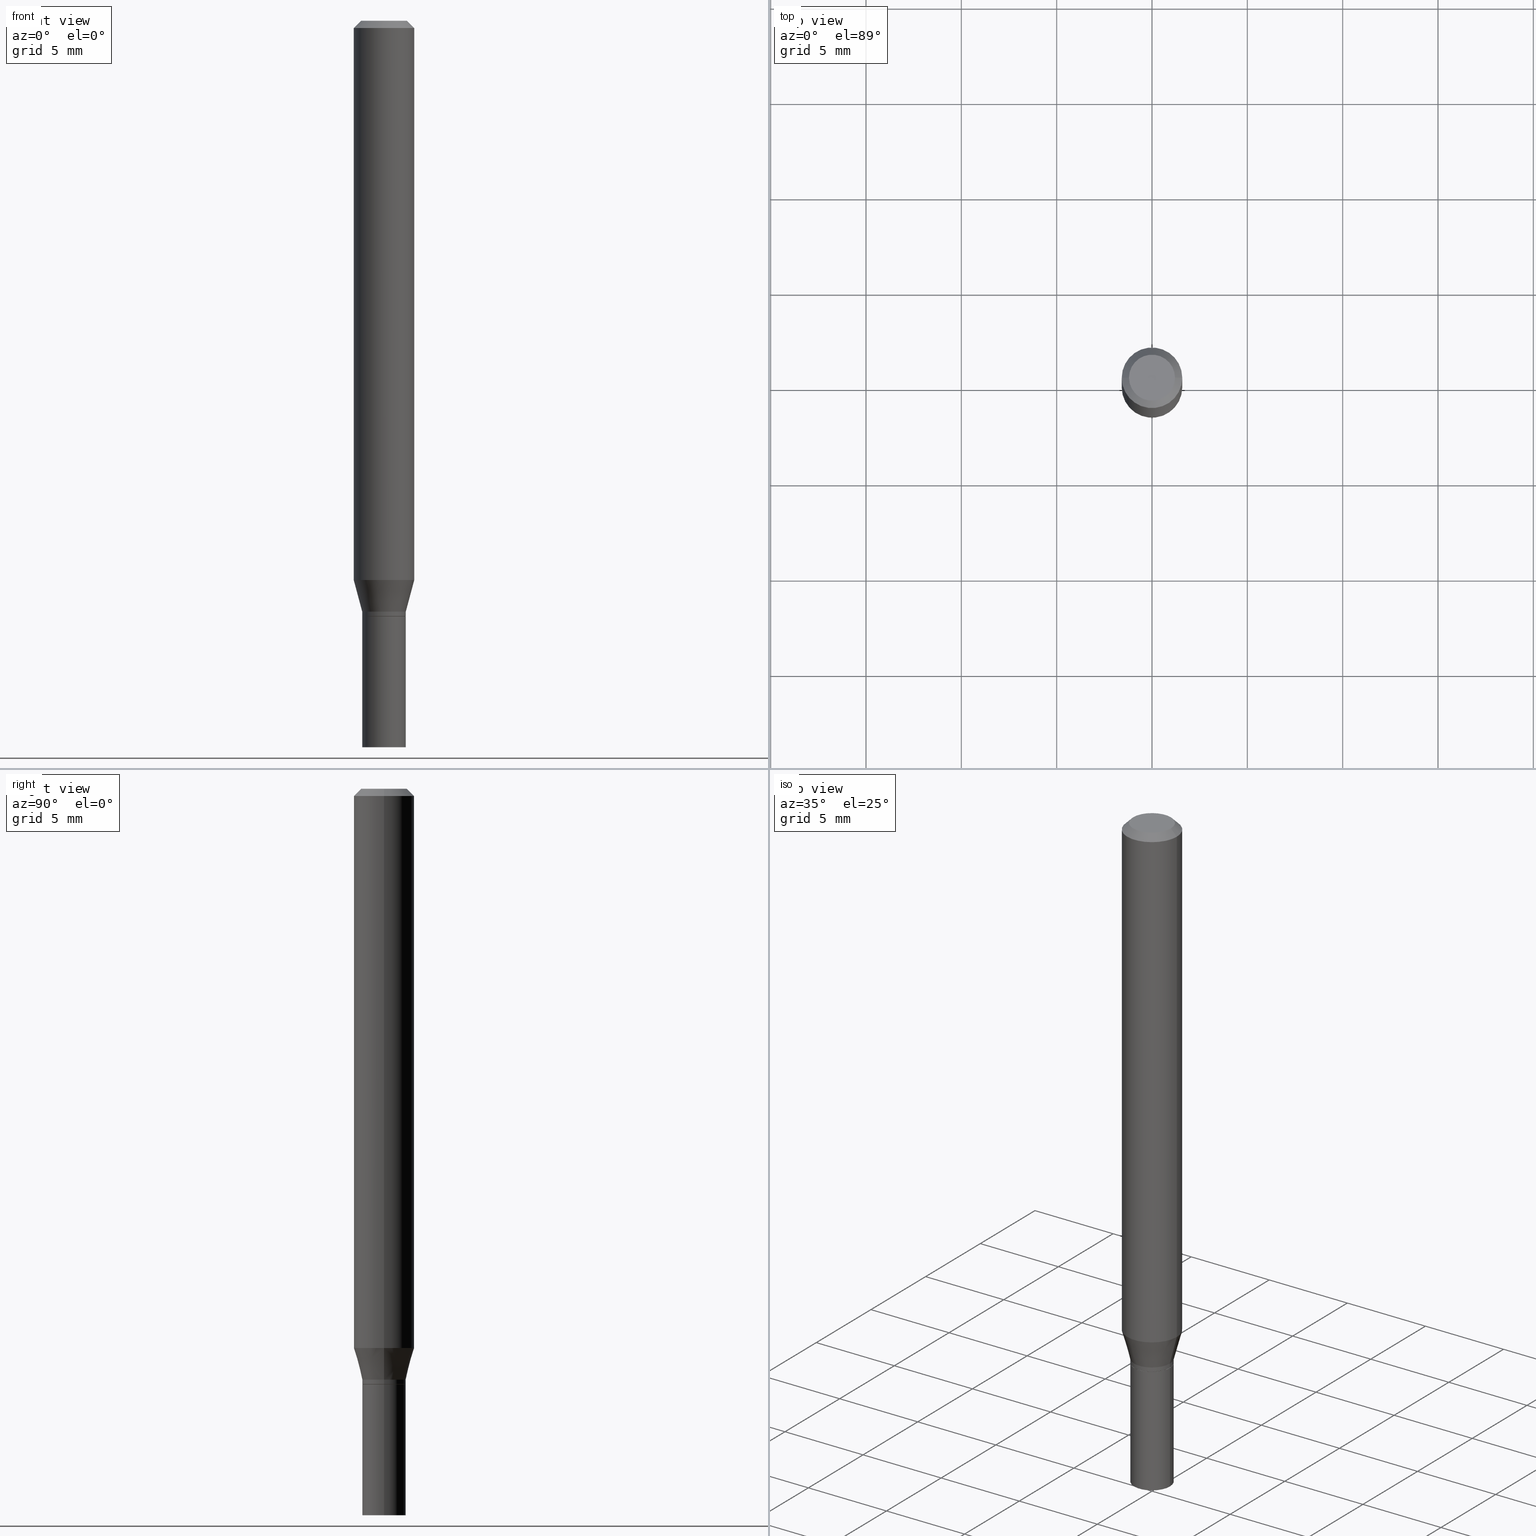
[diagram: canonical four-view strip — front | top / right | iso, engineering-drawing reading convention]
A machine part, canonical four-view strip (front | top / right | iso — engineering-drawing reading convention). The complete STEP part file that produces these views, byte-faithful:
ISO-10303-21;
HEADER;
FILE_DESCRIPTION (( 'STEP AP203' ),
    '1' );
FILE_NAME ('00576.STEP',
    '2024-03-19T21:48:25',
    ( '' ),
    ( '' ),
    'SwSTEP 2.0',
    'SolidWorks 2023',
    '' );
FILE_SCHEMA (( 'CONFIG_CONTROL_DESIGN' ));
ENDSEC;

DATA;
#1 = ORIENTED_EDGE ( 'NONE', *, *, #122, .T. ) ;
#2 = FACE_OUTER_BOUND ( 'NONE', #430, .T. ) ;
#3 = CARTESIAN_POINT ( 'NONE',  ( 2.983471943545866670E-29, -4.259607233388637524E-15, -1.220000000000000195 ) ) ;
#4 = LINE ( 'NONE', #298, #172 ) ;
#5 = VERTEX_POINT ( 'NONE', #261 ) ;
#6 = EDGE_CURVE ( 'NONE', #104, #147, #118, .T. ) ;
#7 = VERTEX_POINT ( 'NONE', #399 ) ;
#8 = ADVANCED_FACE ( 'NONE', ( #442 ), #377, .T. ) ;
#9 = AXIS2_PLACEMENT_3D ( 'NONE', #100, #131, #269 ) ;
#10 = PERSON_AND_ORGANIZATION_ROLE ( 'design_supplier' ) ;
#11 = LOCAL_TIME ( 17, 48, 25.00000000000000000, #406 ) ;
#12 = APPLICATION_CONTEXT ( 'configuration controlled 3d designs of mechanical parts and assemblies' ) ;
#13 = DIRECTION ( 'NONE',  ( -1.000000000000000000, 6.982962677686265922E-15, -4.876176775795935793E-29 ) ) ;
#14 = ADVANCED_FACE ( 'NONE', ( #402 ), #405, .T. ) ;
#15 = DIRECTION ( 'NONE',  ( -2.445468806185136597E-29, 3.491481338843145583E-15, 1.000000000000000000 ) ) ;
#16 = COORDINATED_UNIVERSAL_TIME_OFFSET ( 5, 0, .BEHIND. ) ;
#17 = CIRCLE ( 'NONE', #50, 0.04499999999999999833 ) ;
#18 = DIRECTION ( 'NONE',  ( 1.000000000000000000, -6.982962677686269077E-15, 0.000000000000000000 ) ) ;
#19 = CC_DESIGN_APPROVAL ( #304, ( #441 ) ) ;
#20 = CALENDAR_DATE ( 2024, 19, 3 ) ;
#21 = CARTESIAN_POINT ( 'NONE',  ( 0.04500000000000019262, -4.573840553884520788E-15, -1.220000000000000195 ) ) ;
#22 = DIRECTION ( 'NONE',  ( -2.445468806185136597E-29, 3.491481338843145583E-15, 1.000000000000000000 ) ) ;
#23 = VERTEX_POINT ( 'NONE', #156 ) ;
#24 = CARTESIAN_POINT ( 'NONE',  ( 0.06250000000000000000, -4.364351673553916694E-16, 3.047610484872459871E-30 ) ) ;
#25 = VECTOR ( 'NONE', #78, 39.37007874015748854 ) ;
#26 = AXIS2_PLACEMENT_3D ( 'NONE', #191, #291, #13 ) ;
#27 = VERTEX_POINT ( 'NONE', #295 ) ;
#28 = DIRECTION ( 'NONE',  ( 1.000000000000000000, -6.982962677686257244E-15, 0.000000000000000000 ) ) ;
#29 = ORIENTED_EDGE ( 'NONE', *, *, #96, .T. ) ;
#30 = LINE ( 'NONE', #461, #241 ) ;
#31 = ORIENTED_EDGE ( 'NONE', *, *, #188, .T. ) ;
#32 = DIRECTION ( 'NONE',  ( 1.000000000000000000, -6.982962677686265922E-15, 4.876176775795935793E-29 ) ) ;
#33 = CLOSED_SHELL ( 'NONE', ( #8, #378, #338, #268 ) ) ;
#34 = CONICAL_SURFACE ( 'NONE', #101, 0.04449999999999999789, 0.7853981633974739252 ) ;
#35 = ORIENTED_EDGE ( 'NONE', *, *, #284, .F. ) ;
#36 = PLANE ( 'NONE',  #67 ) ;
#37 = DIRECTION ( 'NONE',  ( 1.000000000000000000, -6.982962677686259611E-15, 0.000000000000000000 ) ) ;
#38 = LINE ( 'NONE', #289, #76 ) ;
#39 = DIRECTION ( 'NONE',  ( -2.445468806185136597E-29, 3.491481338843145583E-15, 1.000000000000000000 ) ) ;
#40 = EDGE_CURVE ( 'NONE', #104, #308, #42, .T. ) ;
#41 = APPROVAL_STATUS ( 'not_yet_approved' ) ;
#42 = CIRCLE ( 'NONE', #462, 0.04500000000000019262 ) ;
#43 = VERTEX_POINT ( 'NONE', #181 ) ;
#44 = CIRCLE ( 'NONE', #207, 0.04499999999999999833 ) ;
#45 = COORDINATED_UNIVERSAL_TIME_OFFSET ( 5, 0, .BEHIND. ) ;
#46 = DIRECTION ( 'NONE',  ( -2.445468806185136597E-29, 3.491481338843145583E-15, 1.000000000000000000 ) ) ;
#47 =( NAMED_UNIT ( * ) SI_UNIT ( $, .STERADIAN. ) SOLID_ANGLE_UNIT ( ) );
#48 = EDGE_CURVE ( 'NONE', #64, #27, #125, .T. ) ;
#49 = PERSON_AND_ORGANIZATION_ROLE ( 'creator' ) ;
#50 = AXIS2_PLACEMENT_3D ( 'NONE', #135, #276, #18 ) ;
#51 = DIRECTION ( 'NONE',  ( 1.000000000000000000, -6.982962677686266711E-15, 0.000000000000000000 ) ) ;
#52 = DATE_AND_TIME ( #20, #224 ) ;
#53 = CARTESIAN_POINT ( 'NONE',  ( 3.668203209277705088E-31, -5.237222008264718399E-17, -0.01499999999999999944 ) ) ;
#54 = DIRECTION ( 'NONE',  ( 1.000000000000000000, -6.982962677686259611E-15, 0.000000000000000000 ) ) ;
#55 = ADVANCED_FACE ( 'NONE', ( #145 ), #274, .T. ) ;
#56 = AXIS2_PLACEMENT_3D ( 'NONE', #254, #319, #465 ) ;
#57 = DIRECTION ( 'NONE',  ( -0.7071067811865656694, 7.493145998870420424E-15, 0.7071067811865294761 ) ) ;
#58 = SECURITY_CLASSIFICATION ( '', '', #382 ) ;
#59 = DIRECTION ( 'NONE',  ( 1.000000000000000000, -6.982962677686269077E-15, 0.000000000000000000 ) ) ;
#60 = EDGE_CURVE ( 'NONE', #27, #311, #249, .T. ) ;
#61 = ORIENTED_EDGE ( 'NONE', *, *, #77, .F. ) ;
#62 = CARTESIAN_POINT ( 'NONE',  ( 2.983471943545866670E-29, -4.259607233388637524E-15, -1.220000000000000195 ) ) ;
#63 = ADVANCED_FACE ( 'NONE', ( #183 ), #334, .T. ) ;
#64 = VERTEX_POINT ( 'NONE', #367 ) ;
#65 = DIRECTION ( 'NONE',  ( -2.445468806185136597E-29, 3.491481338843145583E-15, 1.000000000000000000 ) ) ;
#66 = PRODUCT_DEFINITION_SHAPE ( 'NONE', 'NONE',  #441 ) ;
#67 = AXIS2_PLACEMENT_3D ( 'NONE', #398, #80, #218 ) ;
#68 = ORIENTED_EDGE ( 'NONE', *, *, #332, .T. ) ;
#69 = EDGE_CURVE ( 'NONE', #308, #104, #228, .T. ) ;
#70 = DIRECTION ( 'NONE',  ( 2.445468806185136597E-29, -3.491481338843145583E-15, -1.000000000000000000 ) ) ;
#71 = ORIENTED_EDGE ( 'NONE', *, *, #128, .T. ) ;
#72 = LINE ( 'NONE', #109, #403 ) ;
#73 = EDGE_CURVE ( 'NONE', #237, #311, #302, .T. ) ;
#74 = ORIENTED_EDGE ( 'NONE', *, *, #236, .F. ) ;
#75 = CARTESIAN_POINT ( 'NONE',  ( 3.006703897204625414E-29, -4.292776306107647670E-15, -1.229500000000000037 ) ) ;
#76 = VECTOR ( 'NONE', #396, 39.37007874015748143 ) ;
#77 = EDGE_CURVE ( 'NONE', #23, #7, #189, .T. ) ;
#78 = DIRECTION ( 'NONE',  ( 0.7071067811865454633, -7.319954787623246579E-15, -0.7071067811865493491 ) ) ;
#79 =( GEOMETRIC_REPRESENTATION_CONTEXT ( 3 ) GLOBAL_UNCERTAINTY_ASSIGNED_CONTEXT ( ( #81 ) ) GLOBAL_UNIT_ASSIGNED_CONTEXT ( ( #328, #294, #47 ) ) REPRESENTATION_CONTEXT ( 'NONE', 'WORKASPACE' ) );
#80 = DIRECTION ( 'NONE',  ( 2.438088387897960049E-29, -3.491481338843145188E-15, -1.000000000000000000 ) ) ;
#81 = UNCERTAINTY_MEASURE_WITH_UNIT (LENGTH_MEASURE( 1.000000000000000082E-05 ), #328, 'distance_accuracy_value', 'NONE');
#82 = EDGE_LOOP ( 'NONE', ( #393, #306, #71, #203 ) ) ;
#83 = FACE_OUTER_BOUND ( 'NONE', #358, .T. ) ;
#84 = DIRECTION ( 'NONE',  ( 1.000000000000000000, -6.982962677686266711E-15, 4.876176775795935793E-29 ) ) ;
#85 = EDGE_CURVE ( 'NONE', #108, #7, #130, .T. ) ;
#86 = DATE_AND_TIME ( #335, #260 ) ;
#87 = ORIENTED_EDGE ( 'NONE', *, *, #69, .F. ) ;
#88 = AXIS2_PLACEMENT_3D ( 'NONE', #464, #70, #144 ) ;
#89 = DIMENSIONAL_EXPONENTS ( 1.000000000000000000, 0.000000000000000000, 0.000000000000000000, 0.000000000000000000, 0.000000000000000000, 0.000000000000000000, 0.000000000000000000 ) ;
#90 = APPROVAL_ROLE ( '' ) ;
#91 = ORIENTED_EDGE ( 'NONE', *, *, #256, .F. ) ;
#92 = APPROVAL_ROLE ( '' ) ;
#93 = CLOSED_SHELL ( 'NONE', ( #14, #371, #343, #192, #55, #209, #246, #384, #451, #138, #63, #164 ) ) ;
#94 = AXIS2_PLACEMENT_3D ( 'NONE', #303, #107, #238 ) ;
#95 = CIRCLE ( 'NONE', #103, 0.04499999999999999833 ) ;
#96 = EDGE_CURVE ( 'NONE', #43, #293, #17, .T. ) ;
#97 = COORDINATED_UNIVERSAL_TIME_OFFSET ( 5, 0, .BEHIND. ) ;
#98 = CARTESIAN_POINT ( 'NONE',  ( 2.823756201468233313E-29, -4.031575482759418834E-15, -1.154689110867545443 ) ) ;
#99 = DATE_TIME_ROLE ( 'classification_date' ) ;
#100 = CARTESIAN_POINT ( 'NONE',  ( 0.000000000000000000, 0.000000000000000000, 0.000000000000000000 ) ) ;
#101 = AXIS2_PLACEMENT_3D ( 'NONE', #142, #354, #28 ) ;
#102 = CARTESIAN_POINT ( 'NONE',  ( -0.04500000000000019262, -3.763674637602973398E-15, -1.220000000000000195 ) ) ;
#103 = AXIS2_PLACEMENT_3D ( 'NONE', #285, #429, #211 ) ;
#104 = VERTEX_POINT ( 'NONE', #102 ) ;
#105 = CARTESIAN_POINT ( 'NONE',  ( 3.006703897204625414E-29, -4.292776306107647670E-15, -1.229500000000000037 ) ) ;
#106 = EDGE_LOOP ( 'NONE', ( #1, #139, #355, #206 ) ) ;
#107 = DIRECTION ( 'NONE',  ( -2.445468806185136597E-29, 3.491481338843145583E-15, 1.000000000000000000 ) ) ;
#108 = VERTEX_POINT ( 'NONE', #413 ) ;
#109 = CARTESIAN_POINT ( 'NONE',  ( 0.04499999999999999833, -3.142333204958819823E-16, 2.194279549108170967E-30 ) ) ;
#110 = AXIS2_PLACEMENT_3D ( 'NONE', #231, #379, #54 ) ;
#111 = ORIENTED_EDGE ( 'NONE', *, *, #284, .T. ) ;
#112 = CARTESIAN_POINT ( 'NONE',  ( 0.04499999999999999833, -5.551455328760600652E-15, -1.500000000000000222 ) ) ;
#113 = VERTEX_POINT ( 'NONE', #199 ) ;
#114 = DIRECTION ( 'NONE',  ( -2.445468806185136597E-29, 3.491481338843145583E-15, 1.000000000000000000 ) ) ;
#115 = DIRECTION ( 'NONE',  ( -2.445468806185136597E-29, 3.491481338843145583E-15, 1.000000000000000000 ) ) ;
#116 = DIRECTION ( 'NONE',  ( -2.445468806185136597E-29, 3.491481338843145583E-15, 1.000000000000000000 ) ) ;
#117 = AXIS2_PLACEMENT_3D ( 'NONE', #75, #184, #318 ) ;
#118 = LINE ( 'NONE', #217, #263 ) ;
#119 = CARTESIAN_POINT ( 'NONE',  ( 0.000000000000000000, 0.000000000000000000, 0.000000000000000000 ) ) ;
#120 = ORIENTED_EDGE ( 'NONE', *, *, #162, .F. ) ;
#121 = ORIENTED_EDGE ( 'NONE', *, *, #332, .F. ) ;
#122 = EDGE_CURVE ( 'NONE', #185, #147, #180, .T. ) ;
#123 = PERSON_AND_ORGANIZATION_ROLE ( 'design_owner' ) ;
#124 = DIRECTION ( 'NONE',  ( -2.445468806185136597E-29, 3.491481338843145583E-15, 1.000000000000000000 ) ) ;
#125 = CIRCLE ( 'NONE', #56, 0.04749999999999999362 ) ;
#126 = APPROVAL_PERSON_ORGANIZATION ( #157, #330, #92 ) ;
#127 = APPROVAL_STATUS ( 'not_yet_approved' ) ;
#128 = EDGE_CURVE ( 'NONE', #308, #185, #341, .T. ) ;
#129 = CIRCLE ( 'NONE', #309, 0.06250000000000000000 ) ;
#130 = LINE ( 'NONE', #202, #316 ) ;
#131 = DIRECTION ( 'NONE',  ( -2.445468806185136597E-29, 3.491481338843145583E-15, 1.000000000000000000 ) ) ;
#132 = CYLINDRICAL_SURFACE ( 'NONE', #264, 0.06250000000000000000 ) ;
#133 = ORIENTED_EDGE ( 'NONE', *, *, #96, .F. ) ;
#134 = VECTOR ( 'NONE', #167, 39.37007874015748143 ) ;
#135 = CARTESIAN_POINT ( 'NONE',  ( 3.668203209277704895E-29, -5.237222008264718177E-15, -1.500000000000000222 ) ) ;
#136 = EDGE_LOOP ( 'NONE', ( #245, #253, #212, #219 ) ) ;
#137 = DIRECTION ( 'NONE',  ( -2.445468806185136597E-29, 3.491481338843145583E-15, 1.000000000000000000 ) ) ;
#138 = ADVANCED_FACE ( 'NONE', ( #233 ), #266, .F. ) ;
#139 = ORIENTED_EDGE ( 'NONE', *, *, #256, .T. ) ;
#140 = FACE_OUTER_BOUND ( 'NONE', #193, .T. ) ;
#141 = ORIENTED_EDGE ( 'NONE', *, *, #48, .F. ) ;
#142 = CARTESIAN_POINT ( 'NONE',  ( 3.007926631607718216E-29, -4.294522046777069173E-15, -1.230000000000000204 ) ) ;
#143 = ORIENTED_EDGE ( 'NONE', *, *, #265, .T. ) ;
#144 = DIRECTION ( 'NONE',  ( -1.000000000000000000, 6.982962677686266711E-15, 0.000000000000000000 ) ) ;
#145 = FACE_OUTER_BOUND ( 'NONE', #421, .T. ) ;
#146 = CARTESIAN_POINT ( 'NONE',  ( -0.04499999999999999833, 3.197442310920450718E-16, -2.213520790614707560E-30 ) ) ;
#147 = VERTEX_POINT ( 'NONE', #339 ) ;
#148 = CYLINDRICAL_SURFACE ( 'NONE', #368, 0.04499999999999999833 ) ;
#149 = CIRCLE ( 'NONE', #251, 0.04499999999999999833 ) ;
#150 = DIRECTION ( 'NONE',  ( 1.000000000000000000, -6.982962677686259611E-15, 0.000000000000000000 ) ) ;
#151 = APPLICATION_CONTEXT ( 'configuration controlled 3d designs of mechanical parts and assemblies' ) ;
#152 = PERSON_AND_ORGANIZATION ( #356, #344 ) ;
#153 = ORIENTED_EDGE ( 'NONE', *, *, #426, .T. ) ;
#154 = ADVANCED_BREP_SHAPE_REPRESENTATION ( '00576', ( #424, #415, #410 ), #79 ) ;
#155 = DIRECTION ( 'NONE',  ( 1.000000000000000000, 0.000000000000000000, 0.000000000000000000 ) ) ;
#156 = CARTESIAN_POINT ( 'NONE',  ( -0.04500000000000006078, -3.973032075015602302E-15, -1.229500000000000037 ) ) ;
#157 = PERSON_AND_ORGANIZATION ( #356, #344 ) ;
#158 = AXIS2_PLACEMENT_3D ( 'NONE', #290, #438, #401 ) ;
#159 = LOCAL_TIME ( 17, 48, 25.00000000000000000, #400 ) ;
#160 = LENGTH_MEASURE_WITH_UNIT ( LENGTH_MEASURE( 0.02539999999999999897 ), #262 );
#161 = PERSON_AND_ORGANIZATION ( #356, #344 ) ;
#162 = EDGE_CURVE ( 'NONE', #293, #43, #149, .T. ) ;
#163 = DIRECTION ( 'NONE',  ( 1.000000000000000000, -6.982962677686269077E-15, 0.000000000000000000 ) ) ;
#164 = ADVANCED_FACE ( 'NONE', ( #345 ), #414, .T. ) ;
#165 = AXIS2_PLACEMENT_3D ( 'NONE', #431, #65, #208 ) ;
#166 = FACE_OUTER_BOUND ( 'NONE', #106, .T. ) ;
#167 = DIRECTION ( 'NONE',  ( 0.2588190451025205174, 1.565188264969628476E-15, 0.9659258262890684232 ) ) ;
#168 = DIRECTION ( 'NONE',  ( -2.438088387897960049E-29, 3.491481338843145188E-15, 1.000000000000000000 ) ) ;
#169 = ORIENTED_EDGE ( 'NONE', *, *, #292, .F. ) ;
#170 = AXIS2_PLACEMENT_3D ( 'NONE', #53, #137, #310 ) ;
#171 = DIRECTION ( 'NONE',  ( 1.000000000000000000, -6.982962677686269866E-15, 0.000000000000000000 ) ) ;
#172 = VECTOR ( 'NONE', #220, 39.37007874015748854 ) ;
#173 = ORIENTED_EDGE ( 'NONE', *, *, #186, .T. ) ;
#174 = EDGE_CURVE ( 'NONE', #185, #311, #349, .T. ) ;
#175 = DIRECTION ( 'NONE',  ( 2.445468806185136597E-29, -3.491481338843145583E-15, -1.000000000000000000 ) ) ;
#176 = EDGE_LOOP ( 'NONE', ( #322, #31 ) ) ;
#177 = LINE ( 'NONE', #320, #448 ) ;
#178 = EDGE_LOOP ( 'NONE', ( #350, #385, #243, #360 ) ) ;
#179 = DIRECTION ( 'NONE',  ( 1.000000000000000000, -6.982962677686270655E-15, 0.000000000000000000 ) ) ;
#180 = CIRCLE ( 'NONE', #301, 0.06250000000000000000 ) ;
#181 = CARTESIAN_POINT ( 'NONE',  ( -0.04499999999999999833, -4.446127796428848702E-15, -1.500000000000000222 ) ) ;
#182 = LINE ( 'NONE', #146, #374 ) ;
#183 = FACE_OUTER_BOUND ( 'NONE', #239, .T. ) ;
#184 = DIRECTION ( 'NONE',  ( -2.445468806185136597E-29, 3.491481338843145583E-15, 1.000000000000000000 ) ) ;
#185 = VERTEX_POINT ( 'NONE', #422 ) ;
#186 = EDGE_CURVE ( 'NONE', #27, #64, #435, .T. ) ;
#187 = CARTESIAN_POINT ( 'NONE',  ( 0.04499999999999999833, -4.608755367272951648E-15, -1.230000000000000204 ) ) ;
#188 = EDGE_CURVE ( 'NONE', #113, #463, #44, .T. ) ;
#189 = CIRCLE ( 'NONE', #351, 0.04500000000000006078 ) ;
#190 = ORIENTED_EDGE ( 'NONE', *, *, #271, .T. ) ;
#191 = CARTESIAN_POINT ( 'NONE',  ( 3.316907271900976096E-16, 0.04749999999999999362, -1.224772766956247324E-16 ) ) ;
#192 = ADVANCED_FACE ( 'NONE', ( #166 ), #299, .T. ) ;
#193 = EDGE_LOOP ( 'NONE', ( #458, #141, #153, #214 ) ) ;
#194 = CARTESIAN_POINT ( 'NONE',  ( 0.000000000000000000, 0.000000000000000000, 0.000000000000000000 ) ) ;
#195 = PERSON_AND_ORGANIZATION_ROLE ( 'creator' ) ;
#196 = AXIS2_PLACEMENT_3D ( 'NONE', #286, #115, #150 ) ;
#197 = APPROVAL_STATUS ( 'not_yet_approved' ) ;
#198 = DIRECTION ( 'NONE',  ( 1.000000000000000000, -6.982962677686265922E-15, 4.876176775795935793E-29 ) ) ;
#199 = CARTESIAN_POINT ( 'NONE',  ( -0.04499999999999999833, -4.446127796428848702E-15, -1.230000000000000204 ) ) ;
#200 = CARTESIAN_POINT ( 'NONE',  ( 3.668203209277704895E-29, -5.237222008264718177E-15, -1.500000000000000222 ) ) ;
#201 = APPROVAL_DATE_TIME ( #376, #210 ) ;
#202 = CARTESIAN_POINT ( 'NONE',  ( 0.04449999999999999789, -4.605263885934107852E-15, -1.230000000000000204 ) ) ;
#203 = ORIENTED_EDGE ( 'NONE', *, *, #248, .F. ) ;
#204 = CC_DESIGN_PERSON_AND_ORGANIZATION_ASSIGNMENT ( #386, #412, ( #58 ) ) ;
#205 = DIRECTION ( 'NONE',  ( 1.000000000000000000, -6.982962677686266711E-15, 4.876176775795936353E-29 ) ) ;
#206 = ORIENTED_EDGE ( 'NONE', *, *, #174, .F. ) ;
#207 = AXIS2_PLACEMENT_3D ( 'NONE', #417, #15, #163 ) ;
#208 = DIRECTION ( 'NONE',  ( 1.000000000000000000, -6.982962677686257244E-15, 0.000000000000000000 ) ) ;
#209 = ADVANCED_FACE ( 'NONE', ( #447 ), #443, .T. ) ;
#210 = APPROVAL ( #197, 'UNSPECIFIED' ) ;
#211 = DIRECTION ( 'NONE',  ( 1.000000000000000000, -6.982962677686269077E-15, 0.000000000000000000 ) ) ;
#212 = ORIENTED_EDGE ( 'NONE', *, *, #271, .F. ) ;
#213 = DIRECTION ( 'NONE',  ( -1.000000000000000000, 6.982962677686266711E-15, 0.000000000000000000 ) ) ;
#214 = ORIENTED_EDGE ( 'NONE', *, *, #73, .T. ) ;
#215 = CARTESIAN_POINT ( 'NONE',  ( 0.04500000000000019262, -4.573840553884520788E-15, -1.220000000000000195 ) ) ;
#216 = CC_DESIGN_APPROVAL ( #330, ( #353 ) ) ;
#217 = CARTESIAN_POINT ( 'NONE',  ( -0.04500000000000019262, -3.939863002296591368E-15, -1.220000000000000195 ) ) ;
#218 = DIRECTION ( 'NONE',  ( -1.000000000000000000, 6.982962677686265922E-15, -4.876176775795935793E-29 ) ) ;
#219 = ORIENTED_EDGE ( 'NONE', *, *, #85, .F. ) ;
#220 = DIRECTION ( 'NONE',  ( -0.7071067811865454633, 2.468850131082235761E-15, -0.7071067811865493491 ) ) ;
#221 = ORIENTED_EDGE ( 'NONE', *, *, #162, .T. ) ;
#222 = DATE_AND_TIME ( #226, #159 ) ;
#223 = CONICAL_SURFACE ( 'NONE', #281, 0.06250000000000000000, 0.7853981633974456145 ) ;
#224 = LOCAL_TIME ( 17, 48, 25.00000000000000000, #16 ) ;
#225 = ORIENTED_EDGE ( 'NONE', *, *, #352, .F. ) ;
#226 = CALENDAR_DATE ( 2024, 19, 3 ) ;
#227 = CC_DESIGN_PERSON_AND_ORGANIZATION_ASSIGNMENT ( #161, #49, ( #441 ) ) ;
#228 = CIRCLE ( 'NONE', #455, 0.04500000000000019262 ) ;
#229 = AXIS2_PLACEMENT_3D ( 'NONE', #282, #114, #51 ) ;
#230 = ORIENTED_EDGE ( 'NONE', *, *, #122, .F. ) ;
#231 = CARTESIAN_POINT ( 'NONE',  ( 2.983471943545866670E-29, -4.259607233388637524E-15, -1.220000000000000195 ) ) ;
#232 = DIRECTION ( 'NONE',  ( 0.7071067811865656694, -2.468850131082446387E-15, 0.7071067811865294761 ) ) ;
#233 = FACE_OUTER_BOUND ( 'NONE', #388, .T. ) ;
#234 = PERSON_AND_ORGANIZATION ( #356, #344 ) ;
#235 = CARTESIAN_POINT ( 'NONE',  ( 3.007926631607718216E-29, -4.294522046777069173E-15, -1.230000000000000204 ) ) ;
#236 = EDGE_CURVE ( 'NONE', #5, #23, #449, .T. ) ;
#237 = VERTEX_POINT ( 'NONE', #305 ) ;
#238 = DIRECTION ( 'NONE',  ( 1.000000000000000000, -6.982962677686267499E-15, 4.884662768193073002E-29 ) ) ;
#239 = EDGE_LOOP ( 'NONE', ( #74, #395, #432, #61 ) ) ;
#240 = AXIS2_PLACEMENT_3D ( 'NONE', #288, #39, #84 ) ;
#241 = VECTOR ( 'NONE', #362, 39.37007874015748143 ) ;
#242 = DIRECTION ( 'NONE',  ( -2.438088387897960049E-29, 3.491481338843145188E-15, 1.000000000000000000 ) ) ;
#243 = ORIENTED_EDGE ( 'NONE', *, *, #408, .T. ) ;
#244 = DIRECTION ( 'NONE',  ( 1.000000000000000000, -6.982962677686266711E-15, 4.876176775795935793E-29 ) ) ;
#245 = ORIENTED_EDGE ( 'NONE', *, *, #337, .T. ) ;
#246 = ADVANCED_FACE ( 'NONE', ( #452 ), #132, .T. ) ;
#247 = CARTESIAN_POINT ( 'NONE',  ( 2.823756201468233313E-29, -4.031575482759418834E-15, -1.154689110867545443 ) ) ;
#248 = EDGE_CURVE ( 'NONE', #147, #185, #129, .T. ) ;
#249 = LINE ( 'NONE', #397, #25 ) ;
#250 = DIRECTION ( 'NONE',  ( 1.000000000000000000, -6.982962677686266711E-15, 4.876176775795935793E-29 ) ) ;
#251 = AXIS2_PLACEMENT_3D ( 'NONE', #200, #383, #59 ) ;
#252 = CONICAL_SURFACE ( 'NONE', #88, 0.06250000000000000000, 0.7853981633974456145 ) ;
#253 = ORIENTED_EDGE ( 'NONE', *, *, #236, .T. ) ;
#254 = CARTESIAN_POINT ( 'NONE',  ( -2.121106073929386760E-45, 3.028377322213383622E-31, 8.673617379884936499E-17 ) ) ;
#255 = ORIENTED_EDGE ( 'NONE', *, *, #77, .T. ) ;
#256 = EDGE_CURVE ( 'NONE', #147, #237, #38, .T. ) ;
#257 = PRODUCT_RELATED_PRODUCT_CATEGORY ( 'detail', '', ( #267 ) ) ;
#258 = APPLICATION_PROTOCOL_DEFINITION ( 'international standard', 'config_control_design', 1994, #151 ) ;
#259 = CIRCLE ( 'NONE', #342, 0.04449999999999999789 ) ;
#260 = LOCAL_TIME ( 17, 48, 25.00000000000000000, #45 ) ;
#261 = CARTESIAN_POINT ( 'NONE',  ( -0.04449999999999999789, -3.975681302189713503E-15, -1.230000000000000204 ) ) ;
#262 =( LENGTH_UNIT ( ) NAMED_UNIT ( * ) SI_UNIT ( $, .METRE. ) );
#263 = VECTOR ( 'NONE', #363, 39.37007874015748143 ) ;
#264 = AXIS2_PLACEMENT_3D ( 'NONE', #272, #116, #250 ) ;
#265 = EDGE_CURVE ( 'NONE', #293, #463, #72, .T. ) ;
#266 = PLANE ( 'NONE',  #409 ) ;
#267 = PRODUCT ( '00576', '00576', '', ( #404 ) ) ;
#268 = ADVANCED_FACE ( 'NONE', ( #314 ), #36, .F. ) ;
#269 = DIRECTION ( 'NONE',  ( 1.000000000000000000, -6.982962677686266711E-15, 4.876176775795935793E-29 ) ) ;
#270 = APPROVAL_ROLE ( '' ) ;
#271 = EDGE_CURVE ( 'NONE', #7, #23, #391, .T. ) ;
#272 = CARTESIAN_POINT ( 'NONE',  ( 0.000000000000000000, 0.000000000000000000, 0.000000000000000000 ) ) ;
#273 = ORIENTED_EDGE ( 'NONE', *, *, #40, .F. ) ;
#274 = CONICAL_SURFACE ( 'NONE', #196, 0.04500000000000019262, 0.2617993877991491858 ) ;
#275 = LOCAL_TIME ( 17, 48, 25.00000000000000000, #97 ) ;
#276 = DIRECTION ( 'NONE',  ( -2.445468806185136597E-29, 3.491481338843145583E-15, 1.000000000000000000 ) ) ;
#277 = ORIENTED_EDGE ( 'NONE', *, *, #73, .F. ) ;
#278 = DIRECTION ( 'NONE',  ( -2.445468806185136597E-29, 3.491481338843145583E-15, 1.000000000000000000 ) ) ;
#279 = EDGE_LOOP ( 'NONE', ( #190, #327, #87, #121 ) ) ;
#280 = DIRECTION ( 'NONE',  ( -2.445468806185136597E-29, 3.491481338843145583E-15, 1.000000000000000000 ) ) ;
#281 = AXIS2_PLACEMENT_3D ( 'NONE', #359, #175, #213 ) ;
#282 = CARTESIAN_POINT ( 'NONE',  ( 3.668203209277705088E-31, -5.237222008264718399E-17, -0.01499999999999999944 ) ) ;
#283 = EDGE_LOOP ( 'NONE', ( #91, #423, #348, #277 ) ) ;
#284 = EDGE_CURVE ( 'NONE', #43, #113, #182, .T. ) ;
#285 = CARTESIAN_POINT ( 'NONE',  ( 3.007926631607718216E-29, -4.294522046777069173E-15, -1.230000000000000204 ) ) ;
#286 = CARTESIAN_POINT ( 'NONE',  ( 2.983471943545866670E-29, -4.259607233388637524E-15, -1.220000000000000195 ) ) ;
#287 = DIRECTION ( 'NONE',  ( -2.445468806185136877E-29, 3.491481338843145188E-15, 1.000000000000000000 ) ) ;
#288 = CARTESIAN_POINT ( 'NONE',  ( 0.000000000000000000, 0.000000000000000000, 0.000000000000000000 ) ) ;
#289 = CARTESIAN_POINT ( 'NONE',  ( -0.06250000000000000000, 4.440892098500626162E-16, -3.074334431409316114E-30 ) ) ;
#290 = CARTESIAN_POINT ( 'NONE',  ( 3.007926631607718216E-29, -4.294522046777069173E-15, -1.230000000000000204 ) ) ;
#291 = DIRECTION ( 'NONE',  ( 2.438088387897960049E-29, -3.491481338843145188E-15, -1.000000000000000000 ) ) ;
#292 = EDGE_CURVE ( 'NONE', #23, #104, #177, .T. ) ;
#293 = VERTEX_POINT ( 'NONE', #112 ) ;
#294 =( NAMED_UNIT ( * ) PLANE_ANGLE_UNIT ( ) SI_UNIT ( $, .RADIAN. ) );
#295 = CARTESIAN_POINT ( 'NONE',  ( 0.04749999999999999362, -4.035134999187577144E-16, 8.673617379885194112E-17 ) ) ;
#296 = DIRECTION ( 'NONE',  ( 0.000000000000000000, 0.000000000000000000, 1.000000000000000000 ) ) ;
#297 = AXIS2_PLACEMENT_3D ( 'NONE', #347, #387, #205 ) ;
#298 = CARTESIAN_POINT ( 'NONE',  ( -0.06250000000000000000, 3.840629472727444916E-16, -0.01499999999999999944 ) ) ;
#299 = CYLINDRICAL_SURFACE ( 'NONE', #9, 0.06250000000000000000 ) ;
#300 = AXIS2_PLACEMENT_3D ( 'NONE', #370, #46, #324 ) ;
#301 = AXIS2_PLACEMENT_3D ( 'NONE', #98, #278, #420 ) ;
#302 = CIRCLE ( 'NONE', #170, 0.06250000000000000000 ) ;
#303 = CARTESIAN_POINT ( 'NONE',  ( -2.121106073929386760E-45, 3.028377322213383622E-31, 8.673617379884936499E-17 ) ) ;
#304 = APPROVAL ( #127, 'UNSPECIFIED' ) ;
#305 = CARTESIAN_POINT ( 'NONE',  ( -0.06250000000000000000, -1.597884641570970340E-15, -0.01499999999999999944 ) ) ;
#306 = ORIENTED_EDGE ( 'NONE', *, *, #40, .T. ) ;
#307 = DIRECTION ( 'NONE',  ( 1.000000000000000000, -6.982962677686259611E-15, 0.000000000000000000 ) ) ;
#308 = VERTEX_POINT ( 'NONE', #215 ) ;
#309 = AXIS2_PLACEMENT_3D ( 'NONE', #247, #364, #179 ) ;
#310 = DIRECTION ( 'NONE',  ( 1.000000000000000000, -6.982962677686266711E-15, 0.000000000000000000 ) ) ;
#311 = VERTEX_POINT ( 'NONE', #425 ) ;
#312 = PLANE ( 'NONE',  #361 ) ;
#313 = ORIENTED_EDGE ( 'NONE', *, *, #188, .F. ) ;
#314 = FACE_OUTER_BOUND ( 'NONE', #176, .T. ) ;
#315 = ORIENTED_EDGE ( 'NONE', *, *, #407, .F. ) ;
#316 = VECTOR ( 'NONE', #232, 39.37007874015748143 ) ;
#317 = CC_DESIGN_APPROVAL ( #210, ( #58 ) ) ;
#318 = DIRECTION ( 'NONE',  ( 1.000000000000000000, -6.982962677686269866E-15, 0.000000000000000000 ) ) ;
#319 = DIRECTION ( 'NONE',  ( -2.445468806185136597E-29, 3.491481338843145583E-15, 1.000000000000000000 ) ) ;
#320 = CARTESIAN_POINT ( 'NONE',  ( -0.04500000000000012323, 3.197442310920459593E-16, -2.213520790614713866E-30 ) ) ;
#321 = CC_DESIGN_DATE_AND_TIME_ASSIGNMENT ( #331, #446, ( #441 ) ) ;
#322 = ORIENTED_EDGE ( 'NONE', *, *, #407, .T. ) ;
#323 = DIRECTION ( 'NONE',  ( 1.000000000000000000, -6.982962677686257244E-15, 0.000000000000000000 ) ) ;
#324 = DIRECTION ( 'NONE',  ( 1.000000000000000000, -6.982962677686266711E-15, 4.876176775795936353E-29 ) ) ;
#325 = APPLICATION_PROTOCOL_DEFINITION ( 'international standard', 'config_control_design', 1994, #12 ) ;
#326 = VECTOR ( 'NONE', #457, 39.37007874015748143 ) ;
#327 = ORIENTED_EDGE ( 'NONE', *, *, #292, .T. ) ;
#328 =( CONVERSION_BASED_UNIT ( 'INCH', #160 ) LENGTH_UNIT ( ) NAMED_UNIT ( #89 ) );
#329 = ORIENTED_EDGE ( 'NONE', *, *, #265, .F. ) ;
#330 = APPROVAL ( #41, 'UNSPECIFIED' ) ;
#331 = DATE_AND_TIME ( #369, #11 ) ;
#332 = EDGE_CURVE ( 'NONE', #7, #308, #30, .T. ) ;
#333 = PERSON_AND_ORGANIZATION ( #356, #344 ) ;
#334 = CONICAL_SURFACE ( 'NONE', #158, 0.04449999999999999789, 0.7853981633974739252 ) ;
#335 = CALENDAR_DATE ( 2024, 19, 3 ) ;
#336 = CC_DESIGN_PERSON_AND_ORGANIZATION_ASSIGNMENT ( #333, #10, ( #353 ) ) ;
#337 = EDGE_CURVE ( 'NONE', #108, #5, #259, .T. ) ;
#338 = ADVANCED_FACE ( 'NONE', ( #2 ), #148, .T. ) ;
#339 = CARTESIAN_POINT ( 'NONE',  ( -0.06250000000000000000, -3.587486272909356218E-15, -1.154689110867545443 ) ) ;
#340 = CC_DESIGN_PERSON_AND_ORGANIZATION_ASSIGNMENT ( #444, #123, ( #267 ) ) ;
#341 = LINE ( 'NONE', #21, #134 ) ;
#342 = AXIS2_PLACEMENT_3D ( 'NONE', #394, #433, #323 ) ;
#343 = ADVANCED_FACE ( 'NONE', ( #389 ), #223, .T. ) ;
#344 = ORGANIZATION ( 'UNSPECIFIED', 'UNSPECIFIED', '' ) ;
#345 = FACE_OUTER_BOUND ( 'NONE', #365, .T. ) ;
#346 = CC_DESIGN_PERSON_AND_ORGANIZATION_ASSIGNMENT ( #152, #195, ( #353 ) ) ;
#347 = CARTESIAN_POINT ( 'NONE',  ( 0.000000000000000000, 0.000000000000000000, 0.000000000000000000 ) ) ;
#348 = ORIENTED_EDGE ( 'NONE', *, *, #174, .T. ) ;
#349 = LINE ( 'NONE', #24, #326 ) ;
#350 = ORIENTED_EDGE ( 'NONE', *, *, #186, .F. ) ;
#351 = AXIS2_PLACEMENT_3D ( 'NONE', #105, #454, #171 ) ;
#352 = EDGE_CURVE ( 'NONE', #5, #108, #418, .T. ) ;
#353 = PRODUCT_DEFINITION_FORMATION_WITH_SPECIFIED_SOURCE ( 'ANY', '', #267, .NOT_KNOWN. ) ;
#354 = DIRECTION ( 'NONE',  ( -2.445468806185136597E-29, 3.491481338843145583E-15, 1.000000000000000000 ) ) ;
#355 = ORIENTED_EDGE ( 'NONE', *, *, #408, .F. ) ;
#356 = PERSON ( 'UNSPECIFIED', 'UNSPECIFIED', 'UNSPECIFIED', ('UNSPECIFIED'), ('UNSPECIFIED'), ('UNSPECIFIED') ) ;
#357 = FACE_OUTER_BOUND ( 'NONE', #390, .T. ) ;
#358 = EDGE_LOOP ( 'NONE', ( #460, #173 ) ) ;
#359 = CARTESIAN_POINT ( 'NONE',  ( 3.668203209277705088E-31, -5.237222008264718399E-17, -0.01499999999999999944 ) ) ;
#360 = ORIENTED_EDGE ( 'NONE', *, *, #426, .F. ) ;
#361 = AXIS2_PLACEMENT_3D ( 'NONE', #459, #242, #32 ) ;
#362 = DIRECTION ( 'NONE',  ( -2.445468806185136877E-29, 3.491481338843145188E-15, 1.000000000000000000 ) ) ;
#363 = DIRECTION ( 'NONE',  ( -0.2588190451025205174, 5.211531920934544731E-15, 0.9659258262890684232 ) ) ;
#364 = DIRECTION ( 'NONE',  ( -2.445468806185136597E-29, 3.491481338843145583E-15, 1.000000000000000000 ) ) ;
#365 = EDGE_LOOP ( 'NONE', ( #169, #255, #68, #273 ) ) ;
#366 = APPROVAL_DATE_TIME ( #86, #304 ) ;
#367 = CARTESIAN_POINT ( 'NONE',  ( -0.04749999999999999362, 3.578768372314211985E-16, 8.673617379884694910E-17 ) ) ;
#368 = AXIS2_PLACEMENT_3D ( 'NONE', #119, #280, #244 ) ;
#369 = CALENDAR_DATE ( 2024, 19, 3 ) ;
#370 = CARTESIAN_POINT ( 'NONE',  ( 0.000000000000000000, 0.000000000000000000, 0.000000000000000000 ) ) ;
#371 = ADVANCED_FACE ( 'NONE', ( #392 ), #34, .T. ) ;
#372 = APPROVAL_DATE_TIME ( #222, #330 ) ;
#373 = PERSON_AND_ORGANIZATION ( #356, #344 ) ;
#374 = VECTOR ( 'NONE', #287, 39.37007874015748143 ) ;
#375 = CIRCLE ( 'NONE', #229, 0.06250000000000000000 ) ;
#376 = DATE_AND_TIME ( #416, #275 ) ;
#377 = CYLINDRICAL_SURFACE ( 'NONE', #240, 0.04499999999999999833 ) ;
#378 = ADVANCED_FACE ( 'NONE', ( #357 ), #312, .F. ) ;
#379 = DIRECTION ( 'NONE',  ( -2.445468806185136597E-29, 3.491481338843145583E-15, 1.000000000000000000 ) ) ;
#380 = CARTESIAN_POINT ( 'NONE',  ( -0.04449999999999999789, -3.978330529363824704E-15, -1.230000000000000204 ) ) ;
#381 = VECTOR ( 'NONE', #57, 39.37007874015748143 ) ;
#382 = SECURITY_CLASSIFICATION_LEVEL ( 'unclassified' ) ;
#383 = DIRECTION ( 'NONE',  ( -2.445468806185136597E-29, 3.491481338843145583E-15, 1.000000000000000000 ) ) ;
#384 = ADVANCED_FACE ( 'NONE', ( #140 ), #252, .T. ) ;
#385 = ORIENTED_EDGE ( 'NONE', *, *, #60, .T. ) ;
#386 = PERSON_AND_ORGANIZATION ( #356, #344 ) ;
#387 = DIRECTION ( 'NONE',  ( -2.445468806185136597E-29, 3.491481338843145583E-15, 1.000000000000000000 ) ) ;
#388 = EDGE_LOOP ( 'NONE', ( #427, #225 ) ) ;
#389 = FACE_OUTER_BOUND ( 'NONE', #178, .T. ) ;
#390 = EDGE_LOOP ( 'NONE', ( #120, #133 ) ) ;
#391 = CIRCLE ( 'NONE', #117, 0.04500000000000006078 ) ;
#392 = FACE_OUTER_BOUND ( 'NONE', #136, .T. ) ;
#393 = ORIENTED_EDGE ( 'NONE', *, *, #6, .F. ) ;
#394 = CARTESIAN_POINT ( 'NONE',  ( 3.007926631607718216E-29, -4.294522046777069173E-15, -1.230000000000000204 ) ) ;
#395 = ORIENTED_EDGE ( 'NONE', *, *, #352, .T. ) ;
#396 = DIRECTION ( 'NONE',  ( -2.445468806185136877E-29, 3.491481338843145188E-15, 1.000000000000000000 ) ) ;
#397 = CARTESIAN_POINT ( 'NONE',  ( 0.06250000000000000000, -4.811533449433679005E-16, -0.01499999999999999944 ) ) ;
#398 = CARTESIAN_POINT ( 'NONE',  ( 3.142333204959120083E-16, 0.04499999999999570316, -1.230000000000000204 ) ) ;
#399 = CARTESIAN_POINT ( 'NONE',  ( 0.04500000000000006078, -4.607009626603530145E-15, -1.229500000000000037 ) ) ;
#400 = COORDINATED_UNIVERSAL_TIME_OFFSET ( 5, 0, .BEHIND. ) ;
#401 = DIRECTION ( 'NONE',  ( 1.000000000000000000, -6.982962677686257244E-15, 0.000000000000000000 ) ) ;
#402 = FACE_OUTER_BOUND ( 'NONE', #279, .T. ) ;
#403 = VECTOR ( 'NONE', #466, 39.37007874015748143 ) ;
#404 = MECHANICAL_CONTEXT ( 'NONE', #12, 'mechanical' ) ;
#405 = CYLINDRICAL_SURFACE ( 'NONE', #300, 0.04500000000000012323 ) ;
#406 = COORDINATED_UNIVERSAL_TIME_OFFSET ( 5, 0, .BEHIND. ) ;
#407 = EDGE_CURVE ( 'NONE', #463, #113, #95, .T. ) ;
#408 = EDGE_CURVE ( 'NONE', #311, #237, #375, .T. ) ;
#409 = AXIS2_PLACEMENT_3D ( 'NONE', #235, #168, #198 ) ;
#410 = AXIS2_PLACEMENT_3D ( 'NONE', #194, #296, #155 ) ;
#411 = CC_DESIGN_DATE_AND_TIME_ASSIGNMENT ( #52, #99, ( #58 ) ) ;
#412 = PERSON_AND_ORGANIZATION_ROLE ( 'classification_officer' ) ;
#413 = CARTESIAN_POINT ( 'NONE',  ( 0.04449999999999999789, -4.605263885934107852E-15, -1.230000000000000204 ) ) ;
#414 = CYLINDRICAL_SURFACE ( 'NONE', #297, 0.04500000000000012323 ) ;
#415 = MANIFOLD_SOLID_BREP ( 'Body-Move/Copy2[2]', #93 ) ;
#416 = CALENDAR_DATE ( 2024, 19, 3 ) ;
#417 = CARTESIAN_POINT ( 'NONE',  ( 3.007926631607718216E-29, -4.294522046777069173E-15, -1.230000000000000204 ) ) ;
#418 = CIRCLE ( 'NONE', #165, 0.04449999999999999789 ) ;
#419 = APPROVAL_PERSON_ORGANIZATION ( #234, #210, #270 ) ;
#420 = DIRECTION ( 'NONE',  ( 1.000000000000000000, -6.982962677686270655E-15, 0.000000000000000000 ) ) ;
#421 = EDGE_LOOP ( 'NONE', ( #440, #453, #230, #456 ) ) ;
#422 = CARTESIAN_POINT ( 'NONE',  ( 0.06250000000000000000, -4.468010650114809714E-15, -1.154689110867545443 ) ) ;
#423 = ORIENTED_EDGE ( 'NONE', *, *, #248, .T. ) ;
#424 = MANIFOLD_SOLID_BREP ( 'Body-Move/Copy2[1]', #33 ) ;
#425 = CARTESIAN_POINT ( 'NONE',  ( 0.06250000000000000000, -4.888073874380388472E-16, -0.01499999999999999944 ) ) ;
#426 = EDGE_CURVE ( 'NONE', #64, #237, #4, .T. ) ;
#427 = ORIENTED_EDGE ( 'NONE', *, *, #337, .F. ) ;
#428 = APPROVAL_PERSON_ORGANIZATION ( #373, #304, #90 ) ;
#429 = DIRECTION ( 'NONE',  ( -2.445468806185136597E-29, 3.491481338843145583E-15, 1.000000000000000000 ) ) ;
#430 = EDGE_LOOP ( 'NONE', ( #35, #29, #143, #313 ) ) ;
#431 = CARTESIAN_POINT ( 'NONE',  ( 3.007926631607718216E-29, -4.294522046777069173E-15, -1.230000000000000204 ) ) ;
#432 = ORIENTED_EDGE ( 'NONE', *, *, #85, .T. ) ;
#433 = DIRECTION ( 'NONE',  ( -2.445468806185136597E-29, 3.491481338843145583E-15, 1.000000000000000000 ) ) ;
#434 = EDGE_LOOP ( 'NONE', ( #221, #111, #315, #329 ) ) ;
#435 = CIRCLE ( 'NONE', #94, 0.04749999999999999362 ) ;
#436 = CC_DESIGN_SECURITY_CLASSIFICATION ( #58, ( #353 ) ) ;
#437 = DIRECTION ( 'NONE',  ( -2.445468806185136877E-29, 3.491481338843145188E-15, 1.000000000000000000 ) ) ;
#438 = DIRECTION ( 'NONE',  ( -2.445468806185136597E-29, 3.491481338843145583E-15, 1.000000000000000000 ) ) ;
#439 = DESIGN_CONTEXT ( 'detailed design', #151, 'design' ) ;
#440 = ORIENTED_EDGE ( 'NONE', *, *, #69, .T. ) ;
#441 = PRODUCT_DEFINITION ( 'UNKNOWN', '', #353, #439 ) ;
#442 = FACE_OUTER_BOUND ( 'NONE', #434, .T. ) ;
#443 = CONICAL_SURFACE ( 'NONE', #110, 0.04500000000000019262, 0.2617993877991491858 ) ;
#444 = PERSON_AND_ORGANIZATION ( #356, #344 ) ;
#445 = PLANE ( 'NONE',  #26 ) ;
#446 = DATE_TIME_ROLE ( 'creation_date' ) ;
#447 = FACE_OUTER_BOUND ( 'NONE', #82, .T. ) ;
#448 = VECTOR ( 'NONE', #437, 39.37007874015748143 ) ;
#449 = LINE ( 'NONE', #380, #381 ) ;
#450 = SHAPE_DEFINITION_REPRESENTATION ( #66, #154 ) ;
#451 = ADVANCED_FACE ( 'NONE', ( #83 ), #445, .F. ) ;
#452 = FACE_OUTER_BOUND ( 'NONE', #283, .T. ) ;
#453 = ORIENTED_EDGE ( 'NONE', *, *, #6, .T. ) ;
#454 = DIRECTION ( 'NONE',  ( -2.445468806185136597E-29, 3.491481338843145583E-15, 1.000000000000000000 ) ) ;
#455 = AXIS2_PLACEMENT_3D ( 'NONE', #62, #22, #307 ) ;
#456 = ORIENTED_EDGE ( 'NONE', *, *, #128, .F. ) ;
#457 = DIRECTION ( 'NONE',  ( -2.445468806185136877E-29, 3.491481338843145188E-15, 1.000000000000000000 ) ) ;
#458 = ORIENTED_EDGE ( 'NONE', *, *, #60, .F. ) ;
#459 = CARTESIAN_POINT ( 'NONE',  ( 3.576687321579069994E-29, -5.368277968210015545E-15, -1.500000000000000222 ) ) ;
#460 = ORIENTED_EDGE ( 'NONE', *, *, #48, .T. ) ;
#461 = CARTESIAN_POINT ( 'NONE',  ( 0.04500000000000012323, -3.142333204958828697E-16, 2.194279549108177273E-30 ) ) ;
#462 = AXIS2_PLACEMENT_3D ( 'NONE', #3, #124, #37 ) ;
#463 = VERTEX_POINT ( 'NONE', #187 ) ;
#464 = CARTESIAN_POINT ( 'NONE',  ( 3.668203209277705088E-31, -5.237222008264718399E-17, -0.01499999999999999944 ) ) ;
#465 = DIRECTION ( 'NONE',  ( 1.000000000000000000, -6.982962677686267499E-15, 4.884662768193073002E-29 ) ) ;
#466 = DIRECTION ( 'NONE',  ( -2.445468806185136877E-29, 3.491481338843145188E-15, 1.000000000000000000 ) ) ;
ENDSEC;
END-ISO-10303-21;
